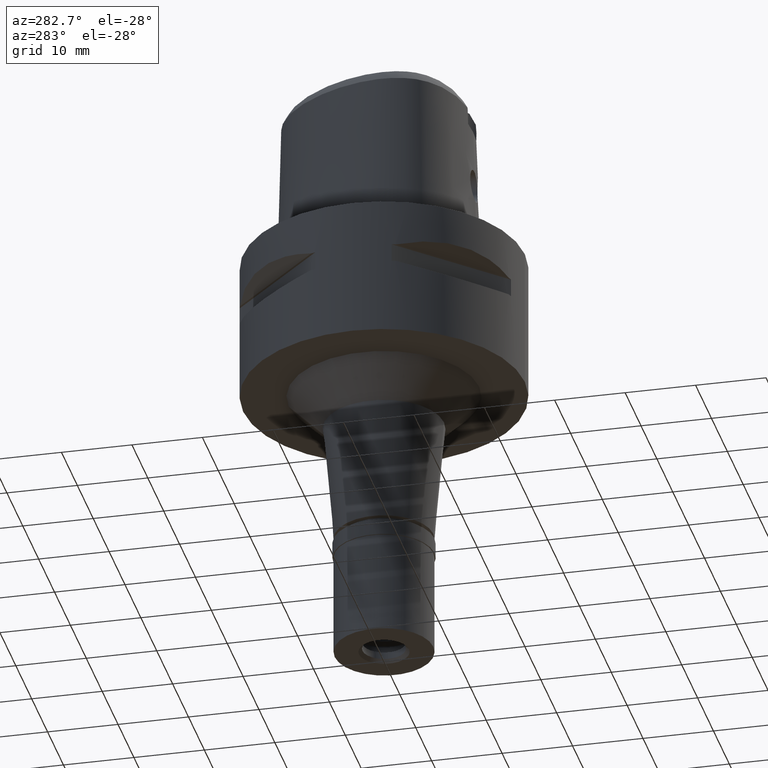
[diagram: clean part render]
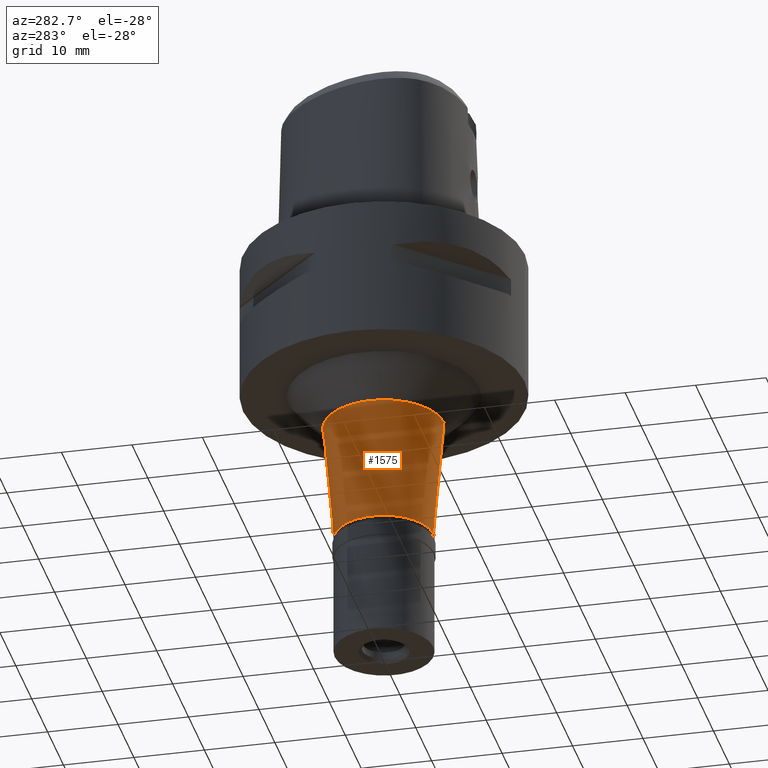
[diagram: same view with one face highlighted and labeled with its STEP entity id]
A machine part, auxiliary view. The second image highlights one B-rep face of the part: STEP entity #1575.
In plain terms, the highlighted conical surface has half-angle 5 deg.
Its self-contained STEP definition (entity closure, byte-faithful):
#73 = VERTEX_POINT ( 'NONE', #3343 ) ;
#301 = DIRECTION ( 'NONE',  ( 0.0000000000000000000, 0.0000000000000000000, 1.000000000000000000 ) ) ;
#611 = CIRCLE ( 'NONE', #2920, 8.513553878998997959 ) ;
#849 = ORIENTED_EDGE ( 'NONE', *, *, #4311, .T. ) ;
#909 = VERTEX_POINT ( 'NONE', #3171 ) ;
#950 = DIRECTION ( 'NONE',  ( 0.0000000000000000000, 1.000000000000000000, 0.0000000000000000000 ) ) ;
#1069 = CIRCLE ( 'NONE', #3659, 7.000000000000000000 ) ;
#1275 = LINE ( 'NONE', #2388, #1419 ) ;
#1419 = VECTOR ( 'NONE', #2299, 1000.000000000000227 ) ;
#1575 = ADVANCED_FACE ( 'NONE', ( #3483 ), #2612, .T. ) ;
#1612 = CARTESIAN_POINT ( 'NONE',  ( 0.0000000000000000000, 7.000000000000000000, -42.29999999999999716 ) ) ;
#1778 = CARTESIAN_POINT ( 'NONE',  ( 0.0000000000000000000, 0.0000000000000000000, -42.29999999999999716 ) ) ;
#1797 = CARTESIAN_POINT ( 'NONE',  ( 0.0000000000000000000, -8.513553878998997959, -25.00000000000000000 ) ) ;
#1955 = AXIS2_PLACEMENT_3D ( 'NONE', #4140, #301, #950 ) ;
#2034 = VECTOR ( 'NONE', #2462, 1000.000000000000227 ) ;
#2278 = DIRECTION ( 'NONE',  ( 0.0000000000000000000, 1.000000000000000000, 0.0000000000000000000 ) ) ;
#2286 = CARTESIAN_POINT ( 'NONE',  ( 0.0000000000000000000, 0.0000000000000000000, -25.00000000000000000 ) ) ;
#2299 = DIRECTION ( 'NONE',  ( 0.0000000000000000000, -0.08715574274768382590, -0.9961946980917432137 ) ) ;
#2347 = EDGE_CURVE ( 'NONE', #3332, #909, #611, .T. ) ;
#2388 = CARTESIAN_POINT ( 'NONE',  ( 0.0000000000000000000, 8.513553878998997959, -25.00000000000000000 ) ) ;
#2462 = DIRECTION ( 'NONE',  ( 0.0000000000000000000, 0.08715574274768382590, -0.9961946980917432137 ) ) ;
#2608 = DIRECTION ( 'NONE',  ( 0.0000000000000000000, -1.000000000000000000, 0.0000000000000000000 ) ) ;
#2612 = CONICAL_SURFACE ( 'NONE', #1955, 7.756776939498999823, 0.08726646259969973729 ) ;
#2632 = DIRECTION ( 'NONE',  ( 0.0000000000000000000, 0.0000000000000000000, -1.000000000000000000 ) ) ;
#2811 = EDGE_CURVE ( 'NONE', #3332, #73, #4136, .T. ) ;
#2877 = EDGE_LOOP ( 'NONE', ( #3701, #4330, #3888, #849 ) ) ;
#2920 = AXIS2_PLACEMENT_3D ( 'NONE', #2286, #2632, #2608 ) ;
#2955 = EDGE_CURVE ( 'NONE', #4337, #73, #1069, .T. ) ;
#3171 = CARTESIAN_POINT ( 'NONE',  ( 0.0000000000000000000, 8.513553878998997959, -25.00000000000000000 ) ) ;
#3178 = DIRECTION ( 'NONE',  ( 0.0000000000000000000, 0.0000000000000000000, 1.000000000000000000 ) ) ;
#3332 = VERTEX_POINT ( 'NONE', #1797 ) ;
#3343 = CARTESIAN_POINT ( 'NONE',  ( 0.0000000000000000000, -7.000000000000000000, -42.29999999999999716 ) ) ;
#3483 = FACE_OUTER_BOUND ( 'NONE', #2877, .T. ) ;
#3505 = CARTESIAN_POINT ( 'NONE',  ( 0.0000000000000000000, -8.513553878998997959, -25.00000000000000000 ) ) ;
#3659 = AXIS2_PLACEMENT_3D ( 'NONE', #1778, #3178, #2278 ) ;
#3701 = ORIENTED_EDGE ( 'NONE', *, *, #2955, .T. ) ;
#3888 = ORIENTED_EDGE ( 'NONE', *, *, #2347, .T. ) ;
#4136 = LINE ( 'NONE', #3505, #2034 ) ;
#4140 = CARTESIAN_POINT ( 'NONE',  ( 0.0000000000000000000, 0.0000000000000000000, -33.64999999999999858 ) ) ;
#4311 = EDGE_CURVE ( 'NONE', #909, #4337, #1275, .T. ) ;
#4330 = ORIENTED_EDGE ( 'NONE', *, *, #2811, .F. ) ;
#4337 = VERTEX_POINT ( 'NONE', #1612 ) ;